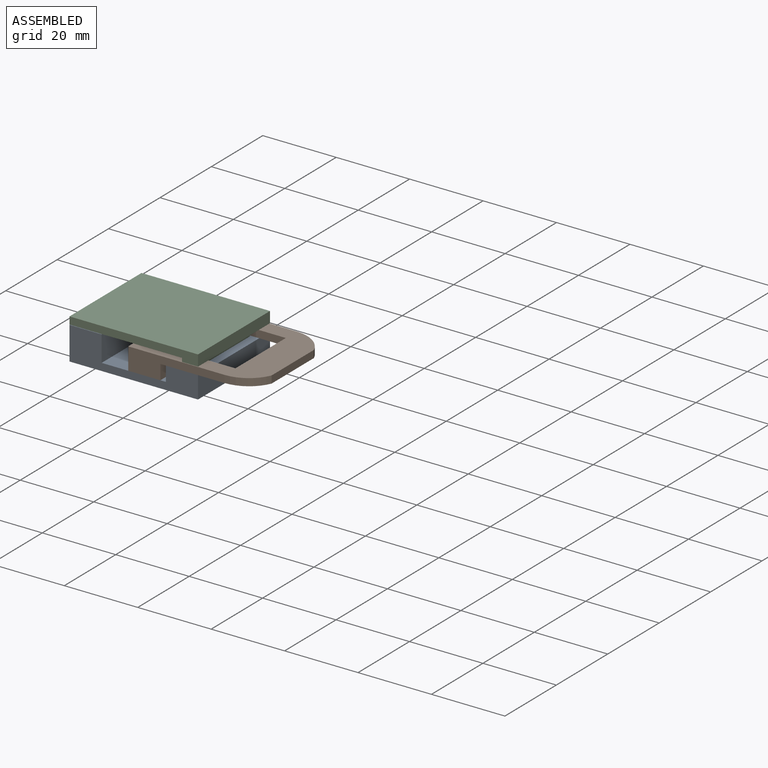
[diagram: assembled view]
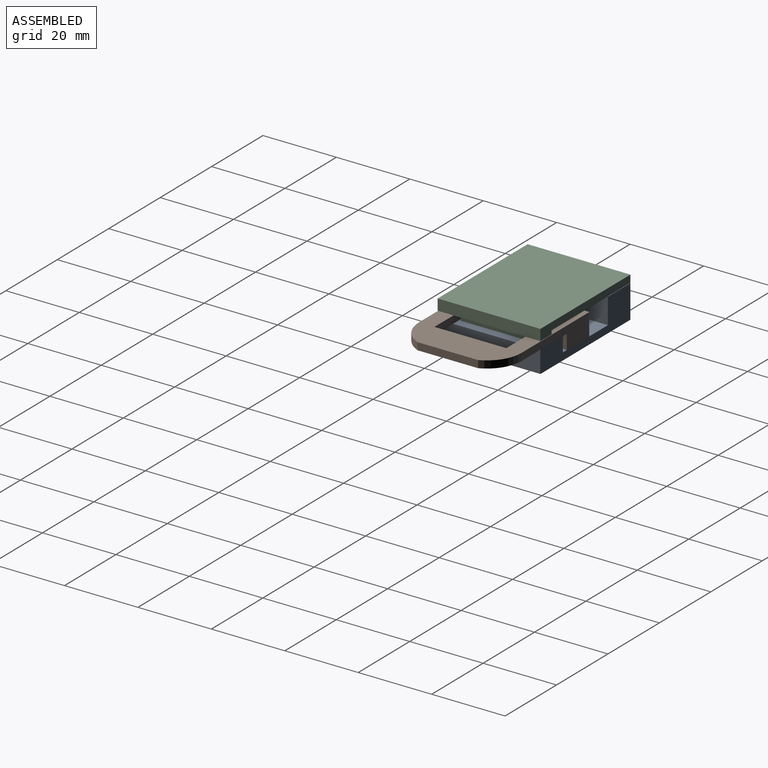
[diagram: assembled view, second angle]
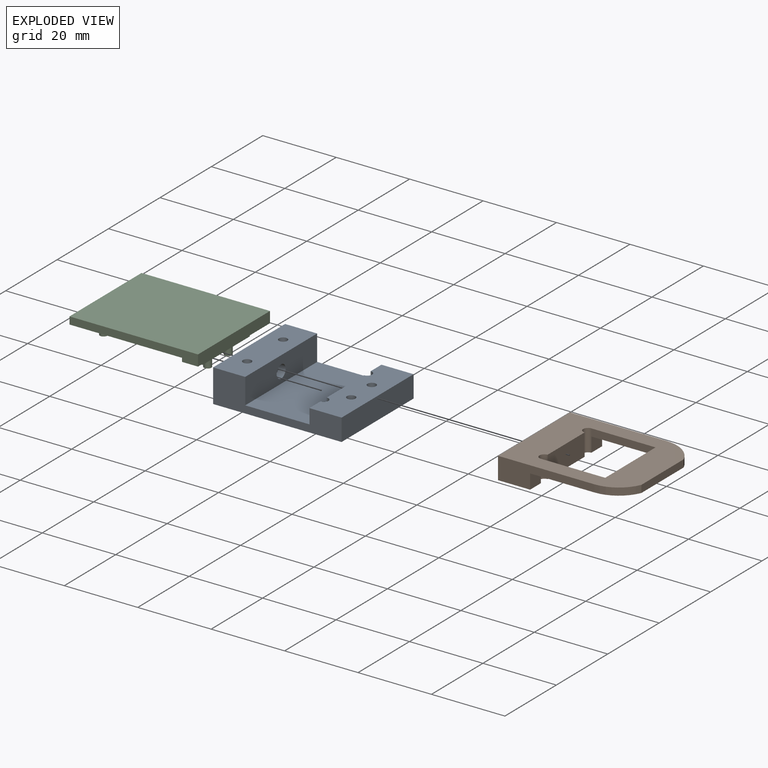
[diagram: exploded view]
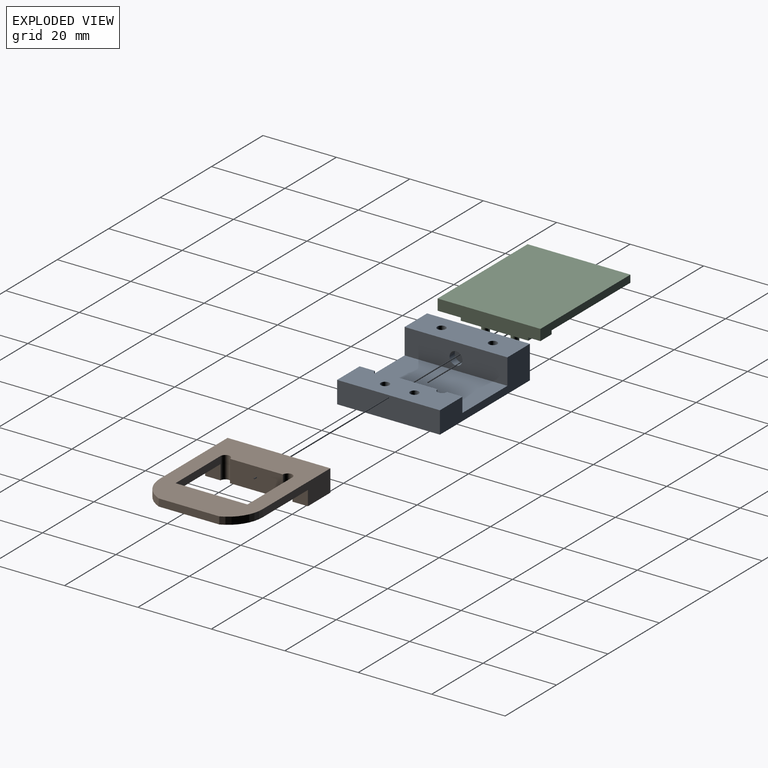
[diagram: exploded view, second angle]
ASSEMBLY  parts=3 mates=2
PART A: 24 faces, bbox 35x28x9 mm
  f0: plane 35x28mm, normal (0,0,-1), area 949.2mm2, adj f7,f8,f9,f10,f11,f14,f15,f16
  f1: plane 28x17.5mm, normal (0,0,1), area 482.9mm2, adj f2,f4,f6,f7,f10,f13,f19,f21
  f2: plane 4.2x4mm, normal (-1,0,0), area 16.8mm2, adj f1,f3,f10,f12,f18
  f3: cylinder r=1.3mm len=4mm, axis (0,0,-1), area 16.3mm2, adj f2,f4,f12,f18
  f4: plane 14.4x4mm, normal (-1,0,0), area 57.6mm2, adj f1,f3,f5,f12,f18,f20
  f5: cylinder r=1.3mm len=4mm, axis (0,0,-1), area 16.3mm2, adj f4,f6,f12,f20
  f6: plane 4.2x4mm, normal (-1,0,0), area 16.8mm2, adj f1,f5,f7,f12,f20
  f7: plane 35x9mm, normal (0,-1,0), area 166.3mm2, adj f0,f1,f6,f8,f12,f13,f14,f17
  f8: plane 28x6mm, normal (1,0,0), area 168mm2, adj f0,f7,f10,f12
  f9: cylinder r=1.15mm len=6mm, axis (0,0,-1), area 43.4mm2, adj f0,f12
  f10: plane 35x9mm, normal (0,1,0), area 166.3mm2, adj f0,f1,f2,f8,f12,f13,f14,f17
  f11: cylinder r=1.15mm len=6mm, axis (0,0,-1), area 43.4mm2, adj f0,f12
  f12: plane 28x8.75mm, normal (0,0,1), area 231.4mm2, adj f2,f3,f4,f5,f6,f7,f8,f9
  f13: plane 28x7mm, normal (1,0,0), area 186.4mm2, adj f1,f7,f10,f17,f22
  f14: plane 28x9mm, normal (-1,0,0), area 252mm2, adj f0,f7,f10,f17
  f15: cylinder r=1.15mm len=9mm, axis (0,0,-1), area 65mm2, adj f0,f17
  f16: cylinder r=1.15mm len=9mm, axis (0,0,-1), area 65mm2, adj f0,f17
  f17: plane 28x8.75mm, normal (0,0,1), area 236.7mm2, adj f7,f10,f13,f14,f15,f16
  f18: plane 3x1.5mm, normal (0,0,-1), area 0.9mm2, adj f2,f3,f4,f19
  f19: cylinder r=1.5mm len=3mm, axis (0,0,-1), area 18.8mm2, adj f0,f1,f18
  f20: plane 3x1.5mm, normal (0,0,-1), area 0.9mm2, adj f4,f5,f6,f21
  f21: cylinder r=1.5mm len=3mm, axis (0,0,-1), area 18.8mm2, adj f0,f1,f20
  f22: cylinder r=1.75mm len=3.5mm, axis (1,0,0), area 22mm2, adj f13,f23
  f23: plane 3.5x3.5mm, normal (1,0,0), area 9.6mm2, adj f22
PART B: 19 faces, bbox 35x28x6 mm
  f0: cylinder r=1.3mm len=6mm, axis (0,0,-1), area 24.5mm2, adj f1,f7,f8,f9,f13
  f1: plane 4.2x4mm, normal (1,0,0), area 16.8mm2, adj f0,f2,f8,f16
  f2: plane 26.25x6mm, normal (0,1,0), area 87.5mm2, adj f1,f3,f8,f9,f12,f16
  f3: plane 28x6mm, normal (-1,0,0), area 155.4mm2, adj f2,f4,f8,f9,f17
  f4: plane 26.25x6mm, normal (0,-1,0), area 87.5mm2, adj f3,f5,f8,f9,f10,f16
  f5: plane 4.2x4mm, normal (1,0,0), area 16.8mm2, adj f4,f6,f8,f16
  f6: cylinder r=1.3mm len=6mm, axis (0,0,-1), area 24.5mm2, adj f5,f7,f8,f9,f15
  f7: plane 14.4x6mm, normal (1,0,0), area 86.4mm2, adj f0,f6,f8,f9
  f8: plane 28x8.75mm, normal (0,0,1), area 239.7mm2, adj f0,f1,f2,f3,f4,f5,f6,f7
  f9: plane 35x28mm, normal (0,0,-1), area 603.5mm2, adj f0,f2,f3,f4,f6,f7,f10,f11
  f10: cylinder r=9.52mm len=8.75mm, axis (0,0,-1), area 22.2mm2, adj f4,f9,f11,f16
  f11: plane 16.47x2mm, normal (1,0,0), area 32.9mm2, adj f9,f10,f12,f16
  f12: cylinder r=9.52mm len=8.75mm, axis (0,0,-1), area 22.2mm2, adj f2,f9,f11,f16
  f13: plane 17.5x2mm, normal (0,-1,0), area 35mm2, adj f0,f9,f14,f16
  f14: plane 19.6x2mm, normal (-1,0,0), area 39.2mm2, adj f9,f13,f15,f16
  f15: plane 17.5x2mm, normal (0,1,0), area 35mm2, adj f6,f9,f14,f16
  f16: plane 28x26.25mm, normal (0,0,1), area 363.9mm2, adj f1,f2,f4,f5,f10,f11,f12,f13
  f17: cylinder r=2mm len=4mm, axis (-1,0,0), area 25.1mm2, adj f3,f18
  f18: plane 4x4mm, normal (-1,0,0), area 12.6mm2, adj f17
PART C: 22 faces, bbox 35x28x8 mm
  f0: plane 35x3mm, normal (0,-1,0), area 74.4mm2, adj f2,f3,f4,f5,f7,f8
  f1: plane 35x3mm, normal (0,1,0), area 74.4mm2, adj f2,f3,f4,f6,f7,f8
  f2: plane 28x2mm, normal (-1,0,0), area 56mm2, adj f0,f1,f3,f4
  f3: plane 30.63x28mm, normal (0,0,1), area 797.6mm2, adj f0,f1,f2,f5,f6,f9,f11,f14
  f4: plane 35x28mm, normal (0,0,-1), area 979.9mm2, adj f0,f1,f2,f7
  f5: plane 4.8x1mm, normal (-1,0,0), area 4.8mm2, adj f0,f3,f8,f17
  f6: plane 4.8x1mm, normal (-1,0,0), area 4.8mm2, adj f1,f3,f8,f15
  f7: plane 28x3mm, normal (1,0,0), area 84mm2, adj f0,f1,f4,f8
  f8: plane 28x4.38mm, normal (0,0,1), area 81.4mm2, adj f0,f1,f5,f6,f7,f15,f16,f17
  f9: cylinder r=1mm len=4mm, axis (0,0,-1), area 25.1mm2, adj f3,f10
  f10: plane 2x2mm, normal (0,0,1), area 3.1mm2, adj f9
  f11: cylinder r=1mm len=4mm, axis (0,0,-1), area 25.1mm2, adj f3,f12
  f12: plane 2x2mm, normal (0,0,1), area 3.1mm2, adj f11
  f13: plane 18.4x5.15mm, normal (0,0,1), area 88.4mm2, adj f14,f15,f16,f17,f19,f21
  f14: plane 18.4x3mm, normal (-1,0,0), area 55.2mm2, adj f3,f13,f15,f17
  f15: plane 5.15x3mm, normal (0,1,0), area 13.2mm2, adj f3,f6,f8,f13,f14,f16
  f16: plane 18.4x2mm, normal (1,0,0), area 36.8mm2, adj f8,f13,f15,f17
  f17: plane 5.15x3mm, normal (0,-1,0), area 13.2mm2, adj f3,f5,f8,f13,f14,f16
  f18: plane 2x2mm, normal (0,0,1), area 3.1mm2, adj f19
  f19: cylinder r=1mm len=3mm, axis (0,0,-1), area 18.8mm2, adj f13,f18
  f20: plane 2x2mm, normal (0,0,1), area 3.1mm2, adj f21
  f21: cylinder r=1mm len=3mm, axis (0,0,-1), area 18.8mm2, adj f13,f20
PLACE A t=(-19.57,12.99,7.34)mm fixed
PLACE B rot(axis=(1,0,0),180deg) t=(-21.07,-1.48,15.34)mm
PLACE C rot(axis=(1,0,0),180deg) t=(-19.57,-85.11,18.44)mm
MATE slider C.f11 <-> A.f15  axis (0,0,-1) through (-41.44,-2.97,12.44)mm
MATE slider B.f7 <-> A.f13  axis (1,0,0) through (-21.07,-9.97,9.34)mm
